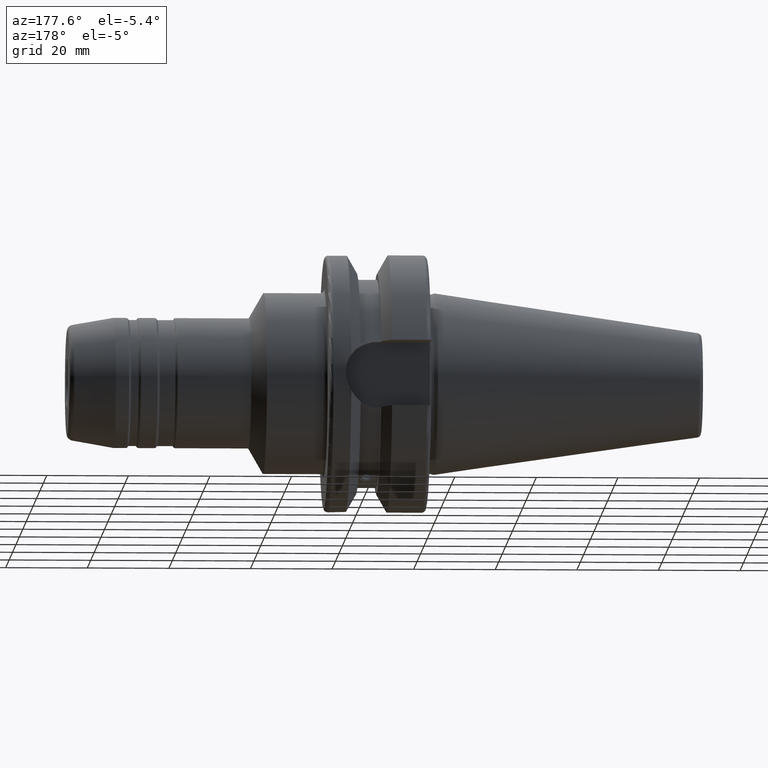
[diagram: clean part render]
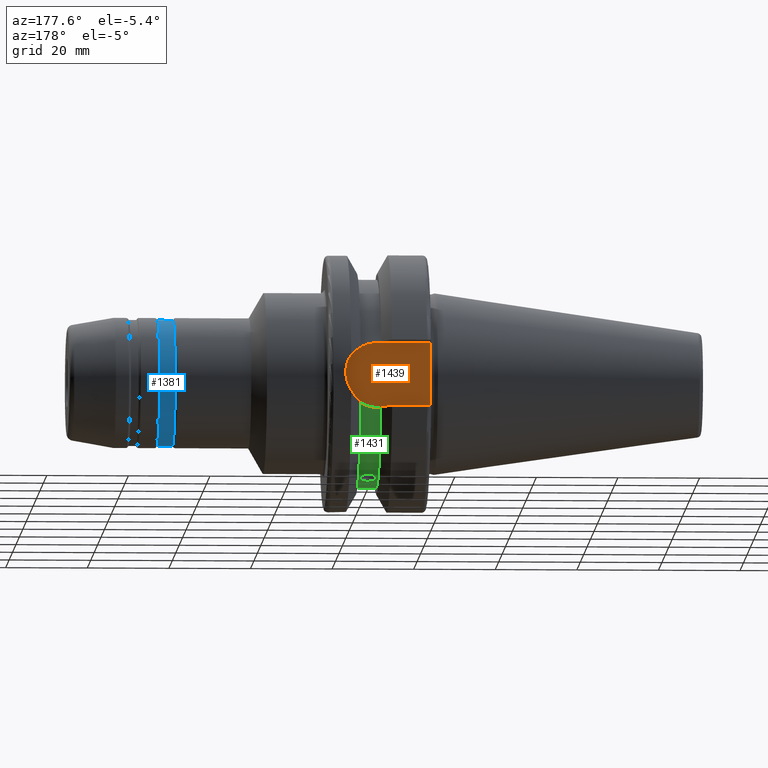
[diagram: same view with three faces highlighted in distinct colors, each labeled with its STEP entity id]
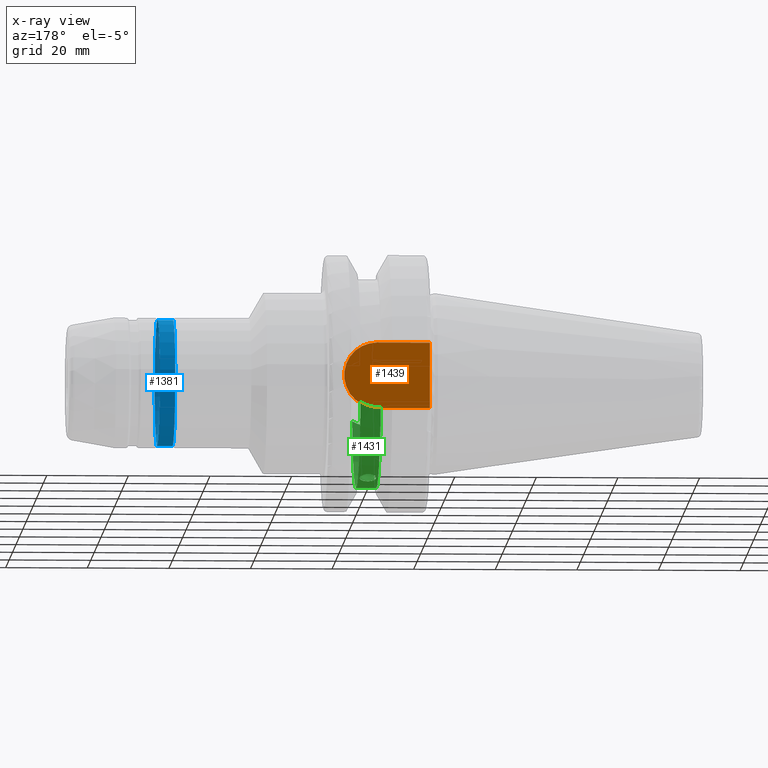
[diagram: x-ray of the same camera — body ghosted, the three highlighted faces saturated]
A machine part, auxiliary view with three faces highlighted in distinct colors.
The next image is the same camera in x-ray (body ghosted, the three faces saturated) — at least one of them is partly hidden behind the body in this view.
Their STEP definitions:

[orange] entity #1439 — the highlighted planar face has unit normal (0, 1, 0).
#52=PLANE('',#1639);
#175=FACE_OUTER_BOUND('',#273,.T.);
#273=EDGE_LOOP('',(#1241,#1242,#1243,#1244));
#383=LINE('',#2752,#454);
#388=LINE('',#2776,#459);
#389=LINE('',#2778,#460);
#454=VECTOR('',#2055,10.);
#459=VECTOR('',#2062,10.);
#460=VECTOR('',#2065,10.);
#537=CIRCLE('',#1636,8.05);
#671=VERTEX_POINT('',#2727);
#672=VERTEX_POINT('',#2729);
#677=VERTEX_POINT('',#2751);
#682=VERTEX_POINT('',#2774);
#865=EDGE_CURVE('',#672,#671,#537,.T.);
#871=EDGE_CURVE('',#677,#672,#383,.T.);
#878=EDGE_CURVE('',#671,#682,#388,.T.);
#879=EDGE_CURVE('',#677,#682,#389,.T.);
#1241=ORIENTED_EDGE('',*,*,#878,.T.);
#1242=ORIENTED_EDGE('',*,*,#879,.F.);
#1243=ORIENTED_EDGE('',*,*,#871,.T.);
#1244=ORIENTED_EDGE('',*,*,#865,.T.);
#1439=ADVANCED_FACE('',(#175),#52,.T.);
#1636=AXIS2_PLACEMENT_3D('',#2730,#2048,#2049);
#1639=AXIS2_PLACEMENT_3D('',#2777,#2063,#2064);
#2048=DIRECTION('center_axis',(0.,1.,0.));
#2049=DIRECTION('ref_axis',(0.,0.,1.));
#2055=DIRECTION('',(1.,0.,8.57315076930623E-17));
#2062=DIRECTION('',(-1.,0.,-8.57315076930623E-17));
#2063=DIRECTION('center_axis',(0.,1.,0.));
#2064=DIRECTION('ref_axis',(0.,0.,1.));
#2065=DIRECTION('',(0.,0.,-1.));
#2727=CARTESIAN_POINT('',(14.95,22.6,-8.05));
#2729=CARTESIAN_POINT('',(14.95,22.6,8.05));
#2730=CARTESIAN_POINT('Origin',(14.95,22.6,0.));
#2751=CARTESIAN_POINT('',(1.99999999999999,22.6,8.05));
#2752=CARTESIAN_POINT('',(1.99999999999999,22.6,8.05));
#2774=CARTESIAN_POINT('',(1.99999999999999,22.6,-8.05));
#2776=CARTESIAN_POINT('',(14.95,22.6,-8.05));
#2777=CARTESIAN_POINT('Origin',(12.5,22.6,0.));
#2778=CARTESIAN_POINT('',(1.99999999999999,22.6,0.));

[blue] entity #1381 — the highlighted cylindrical surface (bore or boss wall) has radius 15.5 mm, axis along (1, 0, 0).
#117=FACE_OUTER_BOUND('',#206,.T.);
#206=EDGE_LOOP('',(#957,#958,#959,#960));
#332=LINE('',#2296,#403);
#403=VECTOR('',#1746,15.5);
#480=CIRCLE('',#1505,15.5);
#483=CIRCLE('',#1509,15.5);
#580=VERTEX_POINT('',#2289);
#582=VERTEX_POINT('',#2295);
#723=EDGE_CURVE('',#580,#580,#480,.T.);
#726=EDGE_CURVE('',#580,#582,#332,.T.);
#727=EDGE_CURVE('',#582,#582,#483,.T.);
#957=ORIENTED_EDGE('',*,*,#723,.F.);
#958=ORIENTED_EDGE('',*,*,#726,.T.);
#959=ORIENTED_EDGE('',*,*,#727,.F.);
#960=ORIENTED_EDGE('',*,*,#726,.F.);
#1342=CYLINDRICAL_SURFACE('',#1508,15.5);
#1381=ADVANCED_FACE('',(#117),#1342,.T.);
#1505=AXIS2_PLACEMENT_3D('',#2290,#1738,#1739);
#1508=AXIS2_PLACEMENT_3D('',#2294,#1744,#1745);
#1509=AXIS2_PLACEMENT_3D('',#2297,#1747,#1748);
#1738=DIRECTION('center_axis',(1.,0.,0.));
#1739=DIRECTION('ref_axis',(0.,1.22464679914735E-16,1.));
#1744=DIRECTION('center_axis',(1.,0.,0.));
#1745=DIRECTION('ref_axis',(0.,0.,-1.));
#1746=DIRECTION('',(-1.,0.,0.));
#1747=DIRECTION('center_axis',(-1.,0.,0.));
#1748=DIRECTION('ref_axis',(0.,1.22464679914735E-16,1.));
#2289=CARTESIAN_POINT('',(67.8845299461621,-1.8982025386784E-15,15.5));
#2290=CARTESIAN_POINT('Origin',(67.8845299461621,0.,0.));
#2294=CARTESIAN_POINT('Origin',(66.,0.,0.));
#2295=CARTESIAN_POINT('',(64.1154700538379,-1.8982025386784E-15,15.5));
#2296=CARTESIAN_POINT('',(66.,-1.8982025386784E-15,15.5));
#2297=CARTESIAN_POINT('Origin',(64.1154700538379,0.,0.));

[green] entity #1431 — the highlighted cylindrical surface (partial cylindrical patch) has radius 25.5 mm, axis along (1, 0, 0).
#101=FACE_BOUND('',#265,.T.);
#167=FACE_OUTER_BOUND('',#264,.T.);
#264=EDGE_LOOP('',(#1191,#1192,#1193,#1194,#1195,#1196));
#265=EDGE_LOOP('',(#1197,#1198));
#308=B_SPLINE_CURVE_WITH_KNOTS('',3,(#2492,#2493,#2494,#2495,#2496,#2497,
#2498,#2499,#2500,#2501,#2502,#2503,#2504,#2505,#2506,#2507,#2508,#2509,
#2510,#2511,#2512,#2513,#2514,#2515,#2516,#2517),.UNSPECIFIED.,.F.,.F.,
(4,2,2,2,2,2,2,2,2,2,2,2,4),(0.,0.0753706034311402,0.15074120686228,0.226111713565585,
0.301482220268889,0.376852726972193,0.452223233675497,0.527593837106637,
0.602964440537777,0.678335043968917,0.753705647400058,0.829076154103362,
0.904446660806666),.UNSPECIFIED.);
#309=B_SPLINE_CURVE_WITH_KNOTS('',3,(#2518,#2519,#2520,#2521,#2522,#2523,
#2524,#2525,#2526,#2527),.UNSPECIFIED.,.F.,.F.,(4,2,2,2,4),(0.904446660806666,
0.97981716750997,1.05518767421327,1.13055827764441,1.20592888107555),
 .UNSPECIFIED.);
#310=B_SPLINE_CURVE_WITH_KNOTS('',3,(#2553,#2554,#2555,#2556,#2557,#2558),
 .UNSPECIFIED.,.F.,.F.,(4,2,4),(2.02525951614585,2.13846497015446,2.44402436414645),
 .UNSPECIFIED.);
#320=B_SPLINE_CURVE_WITH_KNOTS('',3,(#2693,#2694,#2695,#2696,#2697,#2698),
 .UNSPECIFIED.,.F.,.F.,(4,2,4),(2.44402436414645,2.74958375813844,2.86278921214705),
 .UNSPECIFIED.);
#368=LINE('',#2630,#439);
#376=LINE('',#2692,#447);
#439=VECTOR('',#1994,10.);
#447=VECTOR('',#2026,10.);
#531=CIRCLE('',#1624,25.5);
#532=CIRCLE('',#1626,25.5);
#628=VERTEX_POINT('',#2489);
#629=VERTEX_POINT('',#2491);
#636=VERTEX_POINT('',#2551);
#637=VERTEX_POINT('',#2552);
#653=VERTEX_POINT('',#2629);
#664=VERTEX_POINT('',#2685);
#665=VERTEX_POINT('',#2689);
#666=VERTEX_POINT('',#2691);
#805=EDGE_CURVE('',#629,#628,#308,.T.);
#806=EDGE_CURVE('',#628,#629,#309,.T.);
#817=EDGE_CURVE('',#636,#637,#310,.T.);
#835=EDGE_CURVE('',#637,#653,#368,.T.);
#851=EDGE_CURVE('',#636,#664,#531,.T.);
#853=EDGE_CURVE('',#653,#665,#532,.T.);
#854=EDGE_CURVE('',#665,#666,#376,.T.);
#855=EDGE_CURVE('',#666,#664,#320,.T.);
#1191=ORIENTED_EDGE('',*,*,#817,.T.);
#1192=ORIENTED_EDGE('',*,*,#835,.T.);
#1193=ORIENTED_EDGE('',*,*,#853,.T.);
#1194=ORIENTED_EDGE('',*,*,#854,.T.);
#1195=ORIENTED_EDGE('',*,*,#855,.T.);
#1196=ORIENTED_EDGE('',*,*,#851,.F.);
#1197=ORIENTED_EDGE('',*,*,#805,.T.);
#1198=ORIENTED_EDGE('',*,*,#806,.T.);
#1364=CYLINDRICAL_SURFACE('',#1625,25.5);
#1431=ADVANCED_FACE('',(#167,#101),#1364,.T.);
#1624=AXIS2_PLACEMENT_3D('',#2686,#2019,#2020);
#1625=AXIS2_PLACEMENT_3D('',#2688,#2022,#2023);
#1626=AXIS2_PLACEMENT_3D('',#2690,#2024,#2025);
#1994=DIRECTION('',(-1.,0.,0.));
#2019=DIRECTION('center_axis',(1.,0.,0.));
#2020=DIRECTION('ref_axis',(0.,0.,-1.));
#2022=DIRECTION('center_axis',(1.,0.,0.));
#2023=DIRECTION('ref_axis',(0.,1.,0.));
#2024=DIRECTION('center_axis',(1.,0.,0.));
#2025=DIRECTION('ref_axis',(0.,0.,-1.));
#2026=DIRECTION('',(1.,0.,0.));
#2489=CARTESIAN_POINT('',(18.6,8.72151365480455,-23.9621618300407));
#2491=CARTESIAN_POINT('',(16.6,10.5740324061887,-23.2043064682587));
#2492=CARTESIAN_POINT('Ctrl Pts',(16.6,10.5740324061887,-23.2043064682587));
#2493=CARTESIAN_POINT('Ctrl Pts',(16.3487646552295,10.5740324061887,-23.2043064682587));
#2494=CARTESIAN_POINT('Ctrl Pts',(16.0808539398032,10.5282360748462,-23.2253464640325));
#2495=CARTESIAN_POINT('Ctrl Pts',(15.5881259002915,10.341480204317,-23.3091025219309));
#2496=CARTESIAN_POINT('Ctrl Pts',(15.3632997889944,10.2004525041704,-23.3716147691749));
#2497=CARTESIAN_POINT('Ctrl Pts',(15.0082733140735,9.87358134491179,-23.5115716095889));
#2498=CARTESIAN_POINT('Ctrl Pts',(14.8543700008966,9.66590292532593,-23.5983277097944));
#2499=CARTESIAN_POINT('Ctrl Pts',(14.6502304925719,9.20795105223416,-23.78075666331));
#2500=CARTESIAN_POINT('Ctrl Pts',(14.6,8.95759735138452,-23.87623439169));
#2501=CARTESIAN_POINT('Ctrl Pts',(14.6,8.48542995822459,-24.0480892683913));
#2502=CARTESIAN_POINT('Ctrl Pts',(14.6502304925719,8.23227599607073,-24.1358733420695));
#2503=CARTESIAN_POINT('Ctrl Pts',(14.8543700008966,7.76420143750494,-24.290490445821));
#2504=CARTESIAN_POINT('Ctrl Pts',(15.0082733140735,7.54934479194869,-24.357524532261));
#2505=CARTESIAN_POINT('Ctrl Pts',(15.3632997889944,7.20898443387373,-24.4604201035206));
#2506=CARTESIAN_POINT('Ctrl Pts',(15.5881259002915,7.0607688498685,-24.5031838021693));
#2507=CARTESIAN_POINT('Ctrl Pts',(16.0808539398032,6.86386819677648,-24.5590672990511));
#2508=CARTESIAN_POINT('Ctrl Pts',(16.3487646552295,6.81526192304506,-24.5723870415614));
#2509=CARTESIAN_POINT('Ctrl Pts',(16.8512353447705,6.81526192304506,-24.5723870415614));
#2510=CARTESIAN_POINT('Ctrl Pts',(17.1191460601968,6.86386819677648,-24.5590672990511));
#2511=CARTESIAN_POINT('Ctrl Pts',(17.6118740997085,7.0607688498685,-24.5031838021693));
#2512=CARTESIAN_POINT('Ctrl Pts',(17.8367002110056,7.20898443387373,-24.4604201035206));
#2513=CARTESIAN_POINT('Ctrl Pts',(18.1917266859265,7.54934479194869,-24.357524532261));
#2514=CARTESIAN_POINT('Ctrl Pts',(18.3456299991034,7.76420143750494,-24.290490445821));
#2515=CARTESIAN_POINT('Ctrl Pts',(18.5497695074281,8.23227599607073,-24.1358733420695));
#2516=CARTESIAN_POINT('Ctrl Pts',(18.6,8.48542995822459,-24.0480892683913));
#2517=CARTESIAN_POINT('Ctrl Pts',(18.6,8.72151365480455,-23.9621618300407));
#2518=CARTESIAN_POINT('Ctrl Pts',(18.6,8.72151365480455,-23.9621618300407));
#2519=CARTESIAN_POINT('Ctrl Pts',(18.6,8.95759735138452,-23.87623439169));
#2520=CARTESIAN_POINT('Ctrl Pts',(18.5497695074281,9.20795105223416,-23.78075666331));
#2521=CARTESIAN_POINT('Ctrl Pts',(18.3456299991034,9.66590292532593,-23.5983277097944));
#2522=CARTESIAN_POINT('Ctrl Pts',(18.1917266859265,9.87358134491179,-23.5115716095889));
#2523=CARTESIAN_POINT('Ctrl Pts',(17.8367002110056,10.2004525041704,-23.3716147691749));
#2524=CARTESIAN_POINT('Ctrl Pts',(17.6118740997085,10.341480204317,-23.3091025219309));
#2525=CARTESIAN_POINT('Ctrl Pts',(17.1191460601968,10.5282360748462,-23.2253464640325));
#2526=CARTESIAN_POINT('Ctrl Pts',(16.8512353447705,10.5740324061887,-23.2043064682587));
#2527=CARTESIAN_POINT('Ctrl Pts',(16.6,10.5740324061887,-23.2043064682587));
#2551=CARTESIAN_POINT('',(19.1,-24.5493380766162,-6.89782574439221));
#2552=CARTESIAN_POINT('',(14.95,-24.1960224003864,-8.05));
#2553=CARTESIAN_POINT('Ctrl Pts',(19.1,-24.5493380766162,-6.89782574439221));
#2554=CARTESIAN_POINT('Ctrl Pts',(18.7625417379862,-24.492291659194,-7.10085374759973));
#2555=CARTESIAN_POINT('Ctrl Pts',(18.4072379028184,-24.4390565244262,-7.28065599998141));
#2556=CARTESIAN_POINT('Ctrl Pts',(17.0497516664971,-24.2670783971366,-7.84501312719341));
#2557=CARTESIAN_POINT('Ctrl Pts',(15.9685313133066,-24.1960224003864,-8.05));
#2558=CARTESIAN_POINT('Ctrl Pts',(14.95,-24.1960224003864,-8.05));
#2629=CARTESIAN_POINT('',(14.1,-24.1960224003864,-8.05));
#2630=CARTESIAN_POINT('',(16.6,-24.1960224003864,-8.05));
#2685=CARTESIAN_POINT('',(19.1,24.5493380766162,-6.89782574439221));
#2686=CARTESIAN_POINT('Origin',(19.1,0.,0.));
#2688=CARTESIAN_POINT('Origin',(16.6,0.,0.));
#2689=CARTESIAN_POINT('',(14.1,24.1960224003864,-8.05));
#2690=CARTESIAN_POINT('Origin',(14.1,0.,0.));
#2691=CARTESIAN_POINT('',(14.95,24.1960224003864,-8.05));
#2692=CARTESIAN_POINT('',(16.6,24.1960224003864,-8.05));
#2693=CARTESIAN_POINT('Ctrl Pts',(14.95,24.1960224003864,-8.05));
#2694=CARTESIAN_POINT('Ctrl Pts',(15.9685313133066,24.1960224003864,-8.05));
#2695=CARTESIAN_POINT('Ctrl Pts',(17.0497516664971,24.2670783971366,-7.84501312719341));
#2696=CARTESIAN_POINT('Ctrl Pts',(18.4072379028184,24.4390565244262,-7.28065599998141));
#2697=CARTESIAN_POINT('Ctrl Pts',(18.7625417379862,24.492291659194,-7.10085374759973));
#2698=CARTESIAN_POINT('Ctrl Pts',(19.1,24.5493380766162,-6.89782574439221));